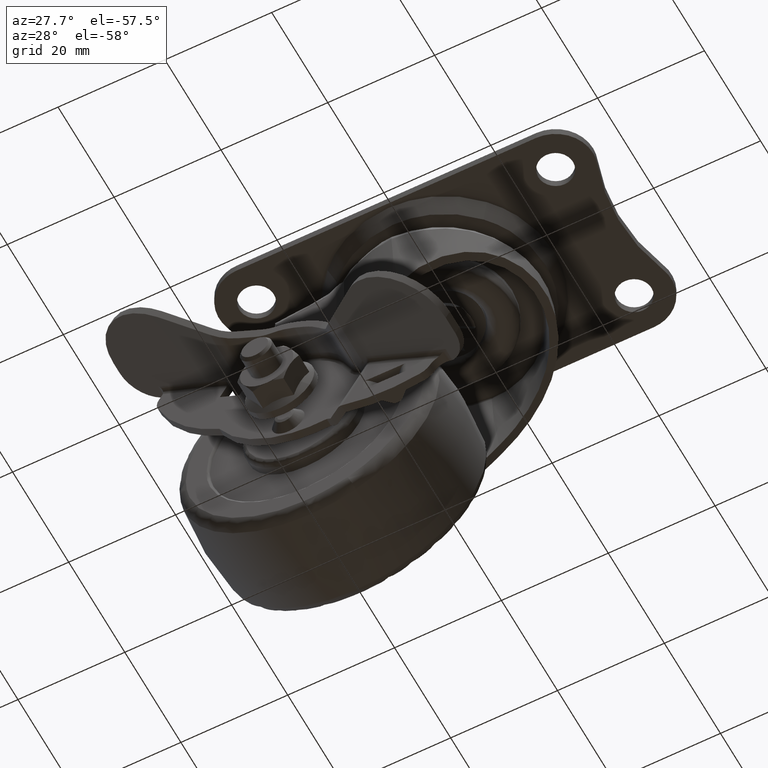
[diagram: clean part render]
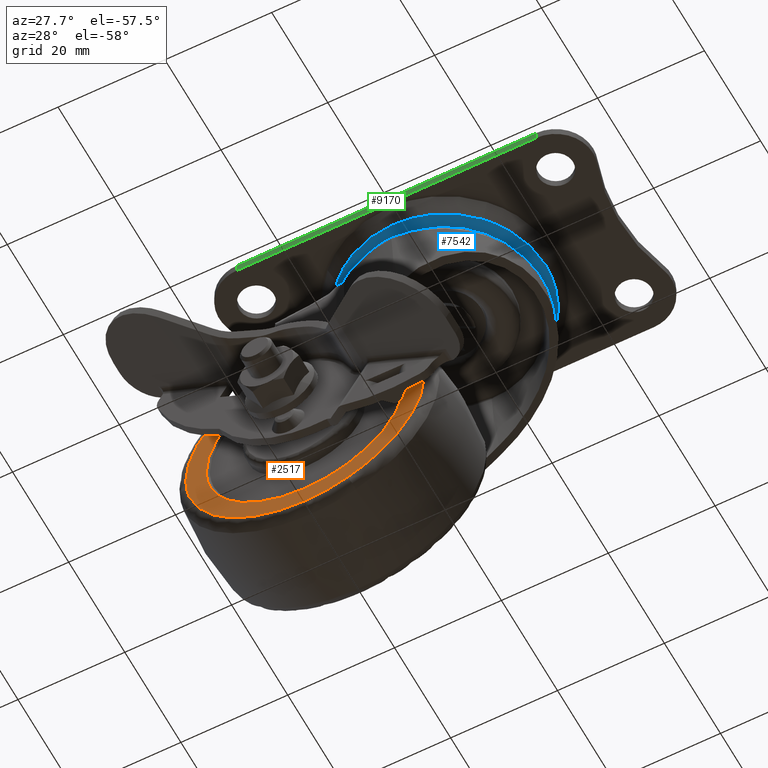
[diagram: same view with three faces highlighted in distinct colors, each labeled with its STEP entity id]
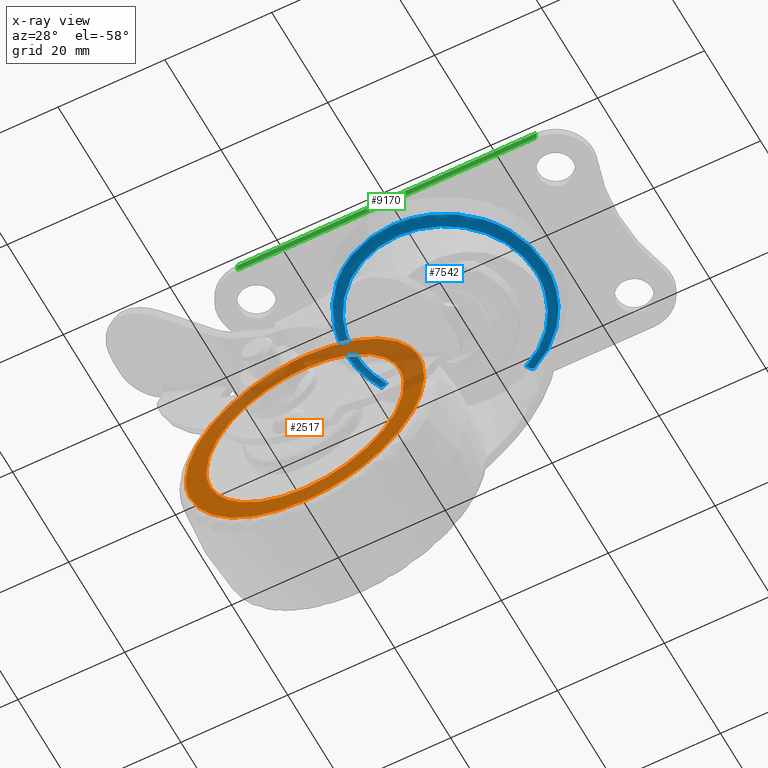
[diagram: x-ray of the same camera — body ghosted, the three highlighted faces saturated]
A machine part, auxiliary view with three faces highlighted in distinct colors.
The next image is the same camera in x-ray (body ghosted, the three faces saturated) — at least one of them is partly hidden behind the body in this view.
Their STEP definitions:

[orange] entity #2517 — the highlighted face is a freeform B-spline surface patch.
#1728=CARTESIAN_POINT('',(-13.052092699383110,-10.0,-59.366215137184469));
#1729=VERTEX_POINT('',#1728);
#1741=CARTESIAN_POINT('',(-21.0,-10.0,-60.828640000000000));
#1742=VERTEX_POINT('',#1741);
#1743=CARTESIAN_POINT('',(-13.052092699383110,-10.0,-59.366215137184469));
#1744=CARTESIAN_POINT('',(-13.803571049114931,-10.0,-59.652434333644592));
#1745=CARTESIAN_POINT('',(-16.386973819152690,-10.000000000000050,-60.479907994466672));
#1746=CARTESIAN_POINT('',(-19.095368897908251,-9.999999999999917,-60.829250064834717));
#1747=CARTESIAN_POINT('',(-21.0,-10.0,-60.828640000000000));
#1748=B_SPLINE_CURVE_WITH_KNOTS('',3,(#1743,#1744,#1745,#1746,#1747),.UNSPECIFIED.,.F.,.U.,(4,1,4),(4.315107E-009,2.412441695835542,8.126112834146838),.UNSPECIFIED.);
#1749=EDGE_CURVE('',#1729,#1742,#1748,.T.);
#1751=CARTESIAN_POINT('',(-43.328639999999943,-10.0,-38.499998391604883));
#1752=VERTEX_POINT('',#1751);
#1753=CARTESIAN_POINT('',(-21.0,-10.0,-60.828640000000000));
#1754=CARTESIAN_POINT('',(-22.187392421673820,-10.0,-60.828710637513311));
#1755=CARTESIAN_POINT('',(-24.607832307592510,-9.999999999999996,-60.635154605935860));
#1756=CARTESIAN_POINT('',(-27.766354959635059,-10.000000000000011,-59.854268826366997));
#1757=CARTESIAN_POINT('',(-30.951536948656319,-10.000000000000050,-58.580513623941400));
#1758=CARTESIAN_POINT('',(-34.121527523823879,-10.0,-56.733164621504983));
#1759=CARTESIAN_POINT('',(-36.921116899697310,-9.999999999999877,-54.288005977112903));
#1760=CARTESIAN_POINT('',(-39.033871977432590,-10.000000000000160,-51.761125921155980));
#1761=CARTESIAN_POINT('',(-40.747827735495321,-9.999999999999510,-49.109038866490117));
#1762=CARTESIAN_POINT('',(-42.151021488267659,-10.000000000000099,-45.969614234820838));
#1763=CARTESIAN_POINT('',(-43.108567771123120,-9.999999999999988,-42.290471948886058));
#1764=CARTESIAN_POINT('',(-43.328762316480663,-9.999999999999943,-39.824402912576367));
#1765=CARTESIAN_POINT('',(-43.328639999999943,-10.0,-38.499998391604883));
#1766=B_SPLINE_CURVE_WITH_KNOTS('',3,(#1753,#1754,#1755,#1756,#1757,#1758,#1759,#1760,#1761,#1762,#1763,#1764,#1765),.UNSPECIFIED.,.F.,.U.,(4,1,1,1,1,1,1,1,1,1,4),(0.000000077881346,3.562176384456304,7.261364165957456,9.727506248240552,13.837713750683340,18.221910342462561,20.825068395524848,23.702211848582440,27.675430028213540,31.100607968383208,35.073801621373633),.UNSPECIFIED.);
#1767=EDGE_CURVE('',#1742,#1752,#1766,.T.);
#1769=CARTESIAN_POINT('',(-21.0,-10.0,-16.171360000000000));
#1770=VERTEX_POINT('',#1769);
#1771=CARTESIAN_POINT('',(-43.328639999999943,-10.0,-38.499998391604883));
#1772=CARTESIAN_POINT('',(-43.329070249660582,-10.0,-36.673201108526342));
#1773=CARTESIAN_POINT('',(-42.973551013408247,-10.000000000000020,-33.796291984142329));
#1774=CARTESIAN_POINT('',(-41.835105574705757,-9.999999999999982,-30.315057244910861));
#1775=CARTESIAN_POINT('',(-40.572460487679663,-9.999999999999979,-27.624012184018529));
#1776=CARTESIAN_POINT('',(-39.095090978747429,-9.999999999999988,-25.306687899435001));
#1777=CARTESIAN_POINT('',(-37.357594556632570,-10.000000000000011,-23.241873193088150));
#1778=CARTESIAN_POINT('',(-35.546931831854273,-9.999999999999966,-21.496675289182772));
#1779=CARTESIAN_POINT('',(-33.076233744828521,-10.000000000000020,-19.604613207182279));
#1780=CARTESIAN_POINT('',(-30.046802384122881,-10.000000000000020,-17.973415802142519));
#1781=CARTESIAN_POINT('',(-27.099747840102850,-9.999999999999954,-16.969813645167509));
#1782=CARTESIAN_POINT('',(-24.196776761608760,-10.000000000000190,-16.336604285566381));
#1783=CARTESIAN_POINT('',(-22.278729597846439,-9.999999999999838,-16.171254947922609));
#1784=CARTESIAN_POINT('',(-21.0,-10.0,-16.171360000000000));
#1785=B_SPLINE_CURVE_WITH_KNOTS('',3,(#1771,#1772,#1773,#1774,#1775,#1776,#1777,#1778,#1779,#1780,#1781,#1782,#1783,#1784),.UNSPECIFIED.,.F.,.U.,(4,1,1,1,1,1,1,1,1,1,1,4),(0.000000078014935,5.480261445192422,8.631442570316963,10.960565447696951,14.385772951600581,16.851893008696081,19.043964394925720,21.921118453612550,26.168342348092558,29.319510064501781,31.237633877808189,35.073799808334869),.UNSPECIFIED.);
#1786=EDGE_CURVE('',#1752,#1770,#1785,.T.);
#1788=CARTESIAN_POINT('',(0.933138401593183,-10.0,-34.316030083079838));
#1789=VERTEX_POINT('',#1788);
#1790=CARTESIAN_POINT('',(-21.0,-10.0,-16.171360000000000));
#1791=CARTESIAN_POINT('',(-19.713965369251842,-10.000000000000030,-16.171270368970781));
#1792=CARTESIAN_POINT('',(-17.101723620952580,-9.999999999999940,-16.397618859290709));
#1793=CARTESIAN_POINT('',(-13.477261538831570,-10.000000000000011,-17.369076759396791));
#1794=CARTESIAN_POINT('',(-10.101567115959369,-10.000000000000030,-18.903274977339489));
#1795=CARTESIAN_POINT('',(-7.480487348890788,-9.999999999999996,-20.642612454888301));
#1796=CARTESIAN_POINT('',(-5.061961162064532,-9.999999999999998,-22.767434897818369));
#1797=CARTESIAN_POINT('',(-3.152840374310250,-10.000000000000030,-24.954455010477439));
#1798=CARTESIAN_POINT('',(-1.380277692412413,-9.999999999999915,-27.692338322668132));
#1799=CARTESIAN_POINT('',(0.035125368839619,-10.000000000000179,-30.723344897122988));
#1800=CARTESIAN_POINT('',(0.692272763498930,-9.999999999999741,-33.052750381060306));
#1801=CARTESIAN_POINT('',(0.933138401593183,-10.0,-34.316030083079838));
#1802=B_SPLINE_CURVE_WITH_KNOTS('',3,(#1790,#1791,#1792,#1793,#1794,#1795,#1796,#1797,#1798,#1799,#1800,#1801),.UNSPECIFIED.,.F.,.U.,(4,1,1,1,1,1,1,1,1,4),(0.000000057612343,3.858097982809202,7.836799815868869,11.212654826967199,14.950230485858491,17.240935948040370,20.857930158043899,23.630967662393509,27.006840094012091,30.864933707455229),.UNSPECIFIED.);
#1803=EDGE_CURVE('',#1770,#1789,#1802,.T.);
#1907=CARTESIAN_POINT('',(0.933138401593183,-10.0,-34.316030083079838));
#1908=CARTESIAN_POINT('',(1.176517038260563,-10.0,-35.591200725237712));
#1909=CARTESIAN_POINT('',(1.427473861083520,-10.000000000000011,-38.062573786372532));
#1910=CARTESIAN_POINT('',(1.187195497144796,-10.000000000000020,-41.758048152206783));
#1911=CARTESIAN_POINT('',(0.467312441343017,-9.999999999999870,-44.892076202312438));
#1912=CARTESIAN_POINT('',(-0.655029614629424,-10.000000000000110,-47.855721026167359));
#1913=CARTESIAN_POINT('',(-1.906271068268347,-9.999999999999908,-50.185592012498532));
#1914=CARTESIAN_POINT('',(-3.547572097633237,-10.000000000000050,-52.506758321541213));
#1915=CARTESIAN_POINT('',(-5.581112816795466,-9.999999999999810,-54.779517762441174));
#1916=CARTESIAN_POINT('',(-8.741151273558046,-10.000000000000311,-57.349675506112732));
#1917=CARTESIAN_POINT('',(-11.459682427831289,-9.999999999999609,-58.760023234036183));
#1918=CARTESIAN_POINT('',(-13.052092699383110,-10.0,-59.366215137184469));
#1919=B_SPLINE_CURVE_WITH_KNOTS('',3,(#1907,#1908,#1909,#1910,#1911,#1912,#1913,#1914,#1915,#1916,#1917,#1918),.UNSPECIFIED.,.F.,.U.,(4,1,1,1,1,1,1,1,1,4),(0.000000058611871,3.894543700651184,7.424016333234260,11.075194067130450,13.509312513810871,16.917007825621269,18.985984376128329,22.028640232683529,26.044918229128641,31.156531864569910),.UNSPECIFIED.);
#1920=EDGE_CURVE('',#1789,#1729,#1919,.T.);
#1955=CARTESIAN_POINT('',(-2.545035042426783,-10.0,-37.209934846147142));
#1956=VERTEX_POINT('',#1955);
#1957=CARTESIAN_POINT('',(-21.0,-10.0,-56.999999999999993));
#1958=VERTEX_POINT('',#1957);
#1959=CARTESIAN_POINT('',(-2.545035042426783,-10.0,-37.209934846147142));
#1960=CARTESIAN_POINT('',(-2.459433362879881,-10.000000000000011,-38.432049499316108));
#1961=CARTESIAN_POINT('',(-2.523060602402624,-9.999999999999989,-40.575683458638032));
#1962=CARTESIAN_POINT('',(-3.081179826211085,-10.000000000000020,-43.292828089746351));
#1963=CARTESIAN_POINT('',(-3.845025803709768,-9.999999999999954,-45.540887341905162));
#1964=CARTESIAN_POINT('',(-4.767844179709289,-10.000000000000091,-47.470450180354128));
#1965=CARTESIAN_POINT('',(-6.108849011651866,-9.999999999999872,-49.572557518019941));
#1966=CARTESIAN_POINT('',(-7.748182164075999,-10.000000000000099,-51.509243579329883));
#1967=CARTESIAN_POINT('',(-9.926740807512390,-9.999999999999908,-53.411371971265403));
#1968=CARTESIAN_POINT('',(-12.272842322058340,-10.000000000000140,-54.895212005967849));
#1969=CARTESIAN_POINT('',(-14.961413901055270,-9.999999999999924,-56.064222331259877));
#1970=CARTESIAN_POINT('',(-17.838478230306400,-9.999999999999970,-56.818290964265358));
#1971=CARTESIAN_POINT('',(-19.932973750352421,-10.000000000000140,-57.000092830367322));
#1972=CARTESIAN_POINT('',(-21.0,-10.0,-56.999999999999993));
#1973=B_SPLINE_CURVE_WITH_KNOTS('',3,(#1959,#1960,#1961,#1962,#1963,#1964,#1965,#1966,#1967,#1968,#1969,#1970,#1971,#1972),.UNSPECIFIED.,.F.,.U.,(4,1,1,1,1,1,1,1,1,1,1,4),(0.000000091453657,3.675298354397921,6.402133807372344,8.299077592571177,10.788797016664830,12.804288154121910,15.768238591899051,18.376516185082352,21.459027754279280,24.067317738757641,27.149829307956651,30.350896967654560),.UNSPECIFIED.);
#1974=EDGE_CURVE('',#1956,#1958,#1973,.T.);
#2024=CARTESIAN_POINT('',(-39.498539310146327,-10.0,-38.732471738061271));
#2025=VERTEX_POINT('',#2024);
#2036=CARTESIAN_POINT('',(-21.0,-10.0,-56.999999999999993));
#2037=CARTESIAN_POINT('',(-22.501464200667900,-10.0,-57.000395676711953));
#2038=CARTESIAN_POINT('',(-24.565713311440870,-10.000000000000011,-56.747253368085893));
#2039=CARTESIAN_POINT('',(-27.807131128911120,-9.999999999999981,-55.783115637033092));
#2040=CARTESIAN_POINT('',(-30.503597479459440,-10.000000000000080,-54.509455058677972));
#2041=CARTESIAN_POINT('',(-33.171003799368691,-9.999999999999906,-52.539441057874271));
#2042=CARTESIAN_POINT('',(-35.405876876252663,-10.0,-50.250494989809461));
#2043=CARTESIAN_POINT('',(-37.052723400189286,-10.000000000000069,-47.858695292310237));
#2044=CARTESIAN_POINT('',(-38.194114872076142,-9.999999999999977,-45.444407085941343));
#2045=CARTESIAN_POINT('',(-39.160833958604712,-9.999999999999851,-42.556962705541743));
#2046=CARTESIAN_POINT('',(-39.479160902507381,-10.000000000000250,-40.308890170662423));
#2047=CARTESIAN_POINT('',(-39.498539310146327,-10.0,-38.732471738061271));
#2048=B_SPLINE_CURVE_WITH_KNOTS('',3,(#2036,#2037,#2038,#2039,#2040,#2041,#2042,#2043,#2044,#2045,#2046,#2047),.UNSPECIFIED.,.F.,.U.,(4,1,1,1,1,1,1,1,1,4),(0.000000080718454,4.504254937661191,6.193357687688273,10.134616485597130,13.400207913579569,16.102707820717161,19.706152460815861,22.070903429198609,24.097838866067828,28.827298686266559),.UNSPECIFIED.);
#2049=EDGE_CURVE('',#1958,#2025,#2048,.T.);
#2083=CARTESIAN_POINT('',(-21.0,-10.0,-20.0));
#2084=VERTEX_POINT('',#2083);
#2085=CARTESIAN_POINT('',(-21.0,-10.0,-20.0));
#2086=CARTESIAN_POINT('',(-19.698324073232410,-9.999999999999959,-19.999753613732821));
#2087=CARTESIAN_POINT('',(-17.782113180133429,-10.000000000000050,-20.203158474370351));
#2088=CARTESIAN_POINT('',(-14.913993829125740,-9.999999999999965,-20.968914281914181));
#2089=CARTESIAN_POINT('',(-12.570196106278990,-10.000000000000121,-21.948185519688518));
#2090=CARTESIAN_POINT('',(-9.914528377477486,-9.999999999999917,-23.580561297933261));
#2091=CARTESIAN_POINT('',(-7.726389632846936,-10.000000000000011,-25.492962511022540));
#2092=CARTESIAN_POINT('',(-5.677395414026037,-9.999999999999993,-27.983835835997649));
#2093=CARTESIAN_POINT('',(-4.059102075021549,-10.000000000000020,-30.782733299130090));
#2094=CARTESIAN_POINT('',(-2.950413725761234,-9.999999999999961,-34.012459303395168));
#2095=CARTESIAN_POINT('',(-2.615575527729788,-10.0,-36.200003372821833));
#2096=CARTESIAN_POINT('',(-2.545035042426783,-10.0,-37.209934846147142));
#2097=B_SPLINE_CURVE_WITH_KNOTS('',3,(#2085,#2086,#2087,#2088,#2089,#2090,#2091,#2092,#2093,#2094,#2095,#2096),.UNSPECIFIED.,.F.,.U.,(4,1,1,1,1,1,1,1,1,4),(0.000000071698853,3.904954381469381,5.748976387081310,8.894658862314046,11.497978592228931,15.077508023137611,17.572329910801699,21.151909173309321,24.731483696922549,27.768658829926110),.UNSPECIFIED.);
#2098=EDGE_CURVE('',#2084,#1956,#2097,.T.);
#2100=CARTESIAN_POINT('',(-39.498539310146327,-10.0,-38.732471738061271));
#2101=CARTESIAN_POINT('',(-39.509591008788597,-10.000000000000011,-37.855304308285113));
#2102=CARTESIAN_POINT('',(-39.397675200289243,-9.999999999999998,-35.946707516632557));
#2103=CARTESIAN_POINT('',(-38.733800018468934,-9.999999999999885,-32.879238312685452));
#2104=CARTESIAN_POINT('',(-37.522471353737579,-10.000000000000361,-29.979151777006940));
#2105=CARTESIAN_POINT('',(-36.005597814738309,-9.999999999999359,-27.590480774696999));
#2106=CARTESIAN_POINT('',(-34.389588255429537,-10.000000000000711,-25.654721605749501));
#2107=CARTESIAN_POINT('',(-32.472938820076202,-9.999999999999584,-23.896828039844550));
#2108=CARTESIAN_POINT('',(-30.407646473305711,-10.000000000000160,-22.512079701234089));
#2109=CARTESIAN_POINT('',(-27.812129487014030,-9.999999999999984,-21.213347390236471));
#2110=CARTESIAN_POINT('',(-24.775929430996449,-9.999999999999929,-20.253702276442379));
#2111=CARTESIAN_POINT('',(-22.220505254379461,-10.000000000000091,-19.999880955688329));
#2112=CARTESIAN_POINT('',(-21.0,-10.0,-20.0));
#2113=B_SPLINE_CURVE_WITH_KNOTS('',3,(#2100,#2101,#2102,#2103,#2104,#2105,#2106,#2107,#2108,#2109,#2110,#2111,#2112),.UNSPECIFIED.,.F.,.U.,(4,1,1,1,1,1,1,1,1,1,4),(0.000000084644032,2.631717989837487,5.721140078878609,9.382680711488913,12.014421006295160,14.188479641938549,16.934548650093362,19.795141067509331,21.625921570323989,25.630741006942479,29.292256589501878),.UNSPECIFIED.);
#2114=EDGE_CURVE('',#2025,#2084,#2113,.T.);
#2499=CARTESIAN_POINT('',(-45.559267615615703,-10.0,-63.059271049445528));
#2500=CARTESIAN_POINT('',(-45.559267615615703,-10.0,-13.940727752752890));
#2501=CARTESIAN_POINT('',(3.559200067759754,-10.0,-63.059271049445520));
#2502=CARTESIAN_POINT('',(3.559200067759754,-10.0,-13.940727752752890));
#2503=B_SPLINE_SURFACE_WITH_KNOTS('',1,1,((#2499,#2501),(#2500,#2502)),.UNSPECIFIED.,.F.,.F.,.U.,(2,2),(2,2),(0.0,49.118543296692643),(0.0,49.118467683375457),.UNSPECIFIED.);
#2504=ORIENTED_EDGE('',*,*,#1786,.F.);
#2505=ORIENTED_EDGE('',*,*,#1767,.F.);
#2506=ORIENTED_EDGE('',*,*,#1749,.F.);
#2507=ORIENTED_EDGE('',*,*,#1920,.F.);
#2508=ORIENTED_EDGE('',*,*,#1803,.F.);
#2509=EDGE_LOOP('',(#2504,#2505,#2506,#2507,#2508));
#2510=FACE_OUTER_BOUND('',#2509,.T.);
#2511=ORIENTED_EDGE('',*,*,#2049,.T.);
#2512=ORIENTED_EDGE('',*,*,#2114,.T.);
#2513=ORIENTED_EDGE('',*,*,#2098,.T.);
#2514=ORIENTED_EDGE('',*,*,#1974,.T.);
#2515=EDGE_LOOP('',(#2511,#2512,#2513,#2514));
#2516=FACE_BOUND('',#2515,.T.);
#2517=ADVANCED_FACE('',(#2510,#2516),#2503,.F.);

[blue] entity #7542 — the highlighted face is a freeform B-spline surface patch.
#3447=CARTESIAN_POINT('',(-13.446668179705361,-13.086058546007839,-3.243997071950652));
#3448=VERTEX_POINT('',#3447);
#3454=CARTESIAN_POINT('',(-0.000001753686267,-18.763203172549570,-3.243997254316575));
#3455=VERTEX_POINT('',#3454);
#3456=CARTESIAN_POINT('',(-0.000001753686267,-18.763203172549570,-3.243997254316575));
#3457=CARTESIAN_POINT('',(-1.288364051509951,-18.763411241258918,-3.243997236843600));
#3458=CARTESIAN_POINT('',(-3.240293101756210,-18.561301306233851,-3.243997210371199));
#3459=CARTESIAN_POINT('',(-6.112442103431523,-17.800195733370568,-3.243997171418657));
#3460=CARTESIAN_POINT('',(-8.355555626021957,-16.869624756788891,-3.243997140997160));
#3461=CARTESIAN_POINT('',(-10.981840301737630,-15.317714932310031,-3.243997105379060));
#3462=CARTESIAN_POINT('',(-12.548280324266820,-14.009517620238260,-3.243997084134728));
#3463=CARTESIAN_POINT('',(-13.446668179705361,-13.086058546007839,-3.243997071950652));
#3464=B_SPLINE_CURVE_WITH_KNOTS('',3,(#3456,#3457,#3458,#3459,#3460,#3461,#3462,#3463),.UNSPECIFIED.,.F.,.U.,(4,1,1,1,1,4),(0.000000021748560,3.865023599977977,5.856102761578656,8.901263083076529,11.126581826376629,14.991605469402741),.UNSPECIFIED.);
#3465=EDGE_CURVE('',#3455,#3448,#3464,.T.);
#3467=CARTESIAN_POINT('',(13.833684071338419,-12.676235966075639,-3.243997436055670));
#3468=VERTEX_POINT('',#3467);
#3469=CARTESIAN_POINT('',(13.833684071338419,-12.676235966075639,-3.243997436055670));
#3470=CARTESIAN_POINT('',(13.094839923604470,-13.482692059862590,-3.243997426349153));
#3471=CARTESIAN_POINT('',(11.685433166951359,-14.773502992839600,-3.243997407833186));
#3472=CARTESIAN_POINT('',(9.492024406734348,-16.240145640083892,-3.243997379017406));
#3473=CARTESIAN_POINT('',(7.208622939391769,-17.389564503118741,-3.243997349019403));
#3474=CARTESIAN_POINT('',(4.091204729390602,-18.447275146579841,-3.243997308064506));
#3475=CARTESIAN_POINT('',(1.539368802225781,-18.763629082507919,-3.243997274539977));
#3476=CARTESIAN_POINT('',(-0.000001753686267,-18.763203172549570,-3.243997254316575));
#3477=B_SPLINE_CURVE_WITH_KNOTS('',3,(#3469,#3470,#3471,#3472,#3473,#3474,#3475,#3476),.UNSPECIFIED.,.F.,.U.,(4,1,1,1,1,4),(0.000000024532918,3.281198228734509,5.711722164604842,7.899155716953234,10.937324234757220,15.555313215745160),.UNSPECIFIED.);
#3478=EDGE_CURVE('',#3468,#3455,#3477,.T.);
#3592=CARTESIAN_POINT('',(18.763203172549652,0.0,-3.243997254316575));
#3593=VERTEX_POINT('',#3592);
#3594=CARTESIAN_POINT('',(18.763203172549652,0.0,-3.243997254316575));
#3595=CARTESIAN_POINT('',(18.763376595798459,-1.232327751025715,-3.243997271984456));
#3596=CARTESIAN_POINT('',(18.562477704105550,-3.261951469003876,-3.243997301083138));
#3597=CARTESIAN_POINT('',(17.803984552538740,-6.104269707350375,-3.243997341833453));
#3598=CARTESIAN_POINT('',(16.904814878440941,-8.249154062143008,-3.243997372584616));
#3599=CARTESIAN_POINT('',(15.609615729058300,-10.518305569559161,-3.243997405117462));
#3600=CARTESIAN_POINT('',(14.568360981771130,-11.874634913956420,-3.243997424563097));
#3601=CARTESIAN_POINT('',(13.833684071338419,-12.676235966075639,-3.243997436055670));
#3602=B_SPLINE_CURVE_WITH_KNOTS('',3,(#3594,#3595,#3596,#3597,#3598,#3599,#3600,#3601),.UNSPECIFIED.,.F.,.U.,(4,1,1,1,1,4),(0.000000018085068,3.696944107060590,6.089098594676400,8.807422298705355,10.655896799908740,13.917905403781710),.UNSPECIFIED.);
#3603=EDGE_CURVE('',#3593,#3468,#3602,.T.);
#3605=CARTESIAN_POINT('',(7.656007003477729,17.130188266726250,-3.243997254495328));
#3606=VERTEX_POINT('',#3605);
#3607=CARTESIAN_POINT('',(7.656007003477729,17.130188266726250,-3.243997254495328));
#3608=CARTESIAN_POINT('',(8.528531847891804,16.740289741678581,-3.243997254481295));
#3609=CARTESIAN_POINT('',(10.213793949616999,15.826757187052340,-3.243997254454156));
#3610=CARTESIAN_POINT('',(12.279220162023540,14.258247178442771,-3.243997254420921));
#3611=CARTESIAN_POINT('',(14.040535763021740,12.516418785473720,-3.243997254392582));
#3612=CARTESIAN_POINT('',(15.369447946578649,10.837695862460270,-3.243997254371168));
#3613=CARTESIAN_POINT('',(16.817671674395019,8.490541532306049,-3.243997254347920));
#3614=CARTESIAN_POINT('',(17.940070390642759,5.835716845105202,-3.243997254329714));
#3615=CARTESIAN_POINT('',(18.629553250414350,2.754573201219147,-3.243997254318867));
#3616=CARTESIAN_POINT('',(18.763237466600319,0.899453866337064,-3.243997254316523));
#3617=CARTESIAN_POINT('',(18.763203172549652,0.0,-3.243997254316575));
#3618=B_SPLINE_CURVE_WITH_KNOTS('',3,(#3607,#3608,#3609,#3610,#3611,#3612,#3613,#3614,#3615,#3616,#3617),.UNSPECIFIED.,.F.,.U.,(4,1,1,1,1,1,1,1,4),(0.000000038395722,2.867035763578816,5.734073138542646,7.757864862345475,10.287635670231451,12.142715654121110,16.021671523914659,18.888726296421929,21.587095960706680),.UNSPECIFIED.);
#3619=EDGE_CURVE('',#3606,#3593,#3618,.T.);
#3621=CARTESIAN_POINT('',(-16.664284633949212,8.623190298832249,-3.243997254477175));
#3622=VERTEX_POINT('',#3621);
#3638=CARTESIAN_POINT('',(-18.763203172549652,0.0,-3.243997254316575));
#3639=VERTEX_POINT('',#3638);
#3640=CARTESIAN_POINT('',(-18.763203172549652,0.0,-3.243997254316575));
#3641=CARTESIAN_POINT('',(-18.763303526115980,1.073323318645818,-3.243997254316583));
#3642=CARTESIAN_POINT('',(-18.614609686821922,2.799916898484510,-3.243997254327920));
#3643=CARTESIAN_POINT('',(-17.950795377010412,5.716021986022797,-3.243997254378756));
#3644=CARTESIAN_POINT('',(-17.243506410843281,7.504218021687992,-3.243997254432852));
#3645=CARTESIAN_POINT('',(-16.664284633949212,8.623190298832249,-3.243997254477175));
#3646=B_SPLINE_CURVE_WITH_KNOTS('',3,(#3640,#3641,#3642,#3643,#3644,#3645),.UNSPECIFIED.,.F.,.U.,(4,1,1,4),(8.503282E-009,3.219955667064719,5.179910622901696,8.959864652143855),.UNSPECIFIED.);
#3647=EDGE_CURVE('',#3639,#3622,#3646,.T.);
#3649=CARTESIAN_POINT('',(-13.446668179705361,-13.086058546007839,-3.243997071950652));
#3650=CARTESIAN_POINT('',(-14.393725432606630,-12.113247748046399,-3.243997085507630));
#3651=CARTESIAN_POINT('',(-15.934910892676790,-10.140149489936441,-3.243997113004540));
#3652=CARTESIAN_POINT('',(-17.579774989726399,-6.855897125490892,-3.243997158773509));
#3653=CARTESIAN_POINT('',(-18.543994043093250,-3.507233516703289,-3.243997205440148));
#3654=CARTESIAN_POINT('',(-18.763320284628730,-1.169092647780289,-3.243997238024218));
#3655=CARTESIAN_POINT('',(-18.763203172549652,0.0,-3.243997254316575));
#3656=B_SPLINE_CURVE_WITH_KNOTS('',3,(#3649,#3650,#3651,#3652,#3653,#3654,#3655),.UNSPECIFIED.,.F.,.U.,(4,1,1,1,4),(0.000000020730353,4.072955709092906,7.467071141828488,10.974345392101389,14.481610096515411),.UNSPECIFIED.);
#3657=EDGE_CURVE('',#3448,#3639,#3656,.T.);
#7416=CARTESIAN_POINT('',(7.674697010486399,17.172004302330318,-3.152944437897303));
#7417=CARTESIAN_POINT('',(8.166151921782566,16.952357983117505,-3.152944437897303));
#7418=CARTESIAN_POINT('',(8.644240346794636,16.704963776939707,-3.152944437897303));
#7419=CARTESIAN_POINT('',(25.349204123734342,8.060723430145066,-3.152944437897304));
#7420=CARTESIAN_POINT('',(16.704963776939707,-8.644240346794636,-3.152944437897303));
#7421=CARTESIAN_POINT('',(8.060723430145066,-25.349204123734342,-3.152944437897304));
#7422=CARTESIAN_POINT('',(-8.644240346794636,-16.704963776939707,-3.152944437897303));
#7423=CARTESIAN_POINT('',(-25.349204123734324,-8.060723430145078,-3.152944437897304));
#7424=CARTESIAN_POINT('',(-16.704963776939707,8.644240346794643,-3.152944437897303));
#7425=CARTESIAN_POINT('',(7.441380874057663,16.649963407024217,-4.365682554120697));
#7426=CARTESIAN_POINT('',(7.917895213631471,16.436994488953047,-4.365682554120697));
#7427=CARTESIAN_POINT('',(8.381449417417258,16.197121239013835,-4.365682554120697));
#7428=CARTESIAN_POINT('',(24.578570656431079,7.815671821596568,-4.365682554120697));
#7429=CARTESIAN_POINT('',(16.197121239013835,-8.381449417417256,-4.365682554120697));
#7430=CARTESIAN_POINT('',(7.815671821596571,-24.578570656431079,-4.365682554120697));
#7431=CARTESIAN_POINT('',(-8.381449417417256,-16.197121239013835,-4.365682554120697));
#7432=CARTESIAN_POINT('',(-24.578570656431079,-7.815671821596583,-4.365682554120697));
#7433=CARTESIAN_POINT('',(-16.197121239013821,8.381449417417263,-4.365682554120697));
#7434=CARTESIAN_POINT('',(6.895007195619874,15.427461574835400,-4.297404239580902));
#7435=CARTESIAN_POINT('',(7.336534091740956,15.230129621613726,-4.297404239580901));
#7436=CARTESIAN_POINT('',(7.766052433129118,15.007868751976799,-4.297404239580901));
#7437=CARTESIAN_POINT('',(22.773921185105927,7.241816318847685,-4.297404239580902));
#7438=CARTESIAN_POINT('',(15.007868751976799,-7.766052433129115,-4.297404239580901));
#7439=CARTESIAN_POINT('',(7.241816318847686,-22.773921185105927,-4.297404239580902));
#7440=CARTESIAN_POINT('',(-7.766052433129115,-15.007868751976799,-4.297404239580901));
#7441=CARTESIAN_POINT('',(-22.773921185105909,-7.241816318847697,-4.297404239580902));
#7442=CARTESIAN_POINT('',(-15.007868751976799,7.766052433129121,-4.297404239580901));
#7450=(BOUNDED_SURFACE()B_SPLINE_SURFACE(2,2,((#7416,#7425,#7434),(#7417,#7426,#7435),(#7418,#7427,#7436),(#7419,#7428,#7437),(#7420,#7429,#7438),(#7421,#7430,#7439),(#7422,#7431,#7440),(#7423,#7432,#7441),(#7424,#7433,#7442)),.UNSPECIFIED.,.F.,.F.,.U.)B_SPLINE_SURFACE_WITH_KNOTS((3,2,2,2,3),(3,3),(0.0,1.246550070674881,32.410331557644902,63.574113044614933,94.737894531584956),(0.0,2.433449396145581),.UNSPECIFIED.)GEOMETRIC_REPRESENTATION_ITEM()RATIONAL_B_SPLINE_SURFACE(((0.903444718542608,0.750584197896223,0.903842508489081),(0.913406545380157,0.758860509277515,0.913808721554678),(0.924234617131715,0.767856499163334,0.924641560945023),(0.653532565181188,0.542956537536556,0.653820317911140),(0.924234617131715,0.767856499163334,0.924641560945023),(0.653532565181188,0.542956537536556,0.653820317911140),(0.924234617131715,0.767856499163334,0.924641560945023),(0.653532565181188,0.542956537536556,0.653820317911140),(0.924234617131715,0.767856499163334,0.924641560945023)))REPRESENTATION_ITEM('')SURFACE());
#7451=ORIENTED_EDGE('',*,*,#3619,.T.);
#7452=ORIENTED_EDGE('',*,*,#3603,.T.);
#7453=ORIENTED_EDGE('',*,*,#3478,.T.);
#7454=ORIENTED_EDGE('',*,*,#3465,.T.);
#7455=ORIENTED_EDGE('',*,*,#3657,.T.);
#7456=ORIENTED_EDGE('',*,*,#3647,.T.);
#7457=CARTESIAN_POINT('',(-15.098324101914081,7.812859944776915,-4.299999201334089));
#7458=VERTEX_POINT('',#7457);
#7459=CARTESIAN_POINT('',(-16.664284633949212,8.623190298832249,-3.243997254477175));
#7460=CARTESIAN_POINT('',(-16.542027885098658,8.559926664424493,-3.501942046313316));
#7461=CARTESIAN_POINT('',(-16.261426727049290,8.414725280920267,-3.867912255930342));
#7462=CARTESIAN_POINT('',(-15.697255644165240,8.122786279913127,-4.219682274280659));
#7463=CARTESIAN_POINT('',(-15.318014023347271,7.926541872363065,-4.300226187778706));
#7464=CARTESIAN_POINT('',(-15.098324101914081,7.812859944776915,-4.299999201334089));
#7465=B_SPLINE_CURVE_WITH_KNOTS('',3,(#7459,#7460,#7461,#7462,#7463,#7464),.UNSPECIFIED.,.F.,.U.,(4,1,1,4),(0.000000098585677,0.876910192600521,1.416507622670016,2.158504412008096),.UNSPECIFIED.);
#7466=EDGE_CURVE('',#3622,#7458,#7465,.T.);
#7467=ORIENTED_EDGE('',*,*,#7466,.T.);
#7468=CARTESIAN_POINT('',(-17.000005033948849,0.0,-4.299999201334090));
#7469=VERTEX_POINT('',#7468);
#7470=CARTESIAN_POINT('',(-17.000005033948849,0.0,-4.299999201334090));
#7471=CARTESIAN_POINT('',(-17.000164956039530,1.141590355313513,-4.299999201334102));
#7472=CARTESIAN_POINT('',(-16.803339580752962,3.086438087569958,-4.299999201334053));
#7473=CARTESIAN_POINT('',(-16.073589931409991,5.699206884445320,-4.299999201334146));
#7474=CARTESIAN_POINT('',(-15.448115133940981,7.136955133006354,-4.299999201334035));
#7475=CARTESIAN_POINT('',(-15.098324101914081,7.812859944776915,-4.299999201334089));
#7476=B_SPLINE_CURVE_WITH_KNOTS('',3,(#7470,#7471,#7472,#7473,#7474,#7475),.UNSPECIFIED.,.F.,.U.,(4,1,1,4),(8.793506E-009,3.424746681451146,5.834737156670521,8.117896650929223),.UNSPECIFIED.);
#7477=EDGE_CURVE('',#7469,#7458,#7476,.T.);
#7478=ORIENTED_EDGE('',*,*,#7477,.F.);
#7479=CARTESIAN_POINT('',(-0.000000907277029,-17.000005033948831,-4.299999201334090));
#7480=VERTEX_POINT('',#7479);
#7481=CARTESIAN_POINT('',(-0.000000907277029,-17.000005033948831,-4.299999201334090));
#7482=CARTESIAN_POINT('',(-0.660626285726565,-17.000010339816850,-4.299999201334084));
#7483=CARTESIAN_POINT('',(-2.225296319245988,-16.908738899178658,-4.299999201334104));
#7484=CARTESIAN_POINT('',(-4.346346277116583,-16.486824931172571,-4.299999201334069));
#7485=CARTESIAN_POINT('',(-6.587544096571205,-15.723491470983291,-4.299999201334139));
#7486=CARTESIAN_POINT('',(-8.496354477607827,-14.784585115648650,-4.299999201333995));
#7487=CARTESIAN_POINT('',(-10.345947969676260,-13.540462400369741,-4.299999201334148));
#7488=CARTESIAN_POINT('',(-12.060533209394301,-12.061501381778490,-4.299999201334045));
#7489=CARTESIAN_POINT('',(-13.804403277141640,-10.064883980855530,-4.299999201334141));
#7490=CARTESIAN_POINT('',(-15.182621635759229,-7.797103362051515,-4.299999201333990));
#7491=CARTESIAN_POINT('',(-16.249106233481491,-5.222337576064424,-4.299999201334139));
#7492=CARTESIAN_POINT('',(-16.861559729726601,-2.712085593777775,-4.299999201334070));
#7493=CARTESIAN_POINT('',(-17.000029754640430,-0.834478776913061,-4.299999201334096));
#7494=CARTESIAN_POINT('',(-17.000005033948849,0.0,-4.299999201334090));
#7495=B_SPLINE_CURVE_WITH_KNOTS('',3,(#7481,#7482,#7483,#7484,#7485,#7486,#7487,#7488,#7489,#7490,#7491,#7492,#7493,#7494),.UNSPECIFIED.,.F.,.U.,(4,1,1,1,1,1,1,1,1,1,1,4),(0.000000082418413,1.981884104949131,4.693985999579137,6.467274608194515,9.075066238960318,11.056967843700111,13.143191544942949,15.855241513588620,18.984576308588320,21.070803993987891,24.200138788710859,26.703586841579789),.UNSPECIFIED.);
#7496=EDGE_CURVE('',#7480,#7469,#7495,.T.);
#7497=ORIENTED_EDGE('',*,*,#7496,.F.);
#7498=CARTESIAN_POINT('',(17.000005033948849,0.0,-4.299999201334090));
#7499=VERTEX_POINT('',#7498);
#7500=CARTESIAN_POINT('',(17.000005033948849,0.0,-4.299999201334090));
#7501=CARTESIAN_POINT('',(17.000325148710999,-1.390836821562543,-4.299999201334083));
#7502=CARTESIAN_POINT('',(16.725350197682641,-3.615947439547790,-4.299999201334101));
#7503=CARTESIAN_POINT('',(15.653529502534210,-6.860286404710427,-4.299999201334082));
#7504=CARTESIAN_POINT('',(14.320085209718499,-9.318684828144306,-4.299999201334074));
#7505=CARTESIAN_POINT('',(12.483233312677500,-11.642656875261711,-4.299999201334059));
#7506=CARTESIAN_POINT('',(10.508371672664330,-13.466035513639831,-4.299999201334173));
#7507=CARTESIAN_POINT('',(8.227770093509527,-14.949655753100529,-4.299999201333969));
#7508=CARTESIAN_POINT('',(6.006280762842344,-15.958898516380611,-4.299999201334126));
#7509=CARTESIAN_POINT('',(3.303066483124586,-16.769950309523200,-4.299999201334066));
#7510=CARTESIAN_POINT('',(1.286520487667777,-17.000249971533432,-4.299999201334107));
#7511=CARTESIAN_POINT('',(-0.000000907277029,-17.000005033948831,-4.299999201334090));
#7512=B_SPLINE_CURVE_WITH_KNOTS('',3,(#7500,#7501,#7502,#7503,#7504,#7505,#7506,#7507,#7508,#7509,#7510,#7511),.UNSPECIFIED.,.F.,.U.,(4,1,1,1,1,1,1,1,1,4),(0.000000082353150,4.172416917594987,6.675897707671805,10.222496112963681,12.517351842417041,15.542286157368540,18.254391122555798,20.653560588715170,22.844093433169981,26.703587864294061),.UNSPECIFIED.);
#7513=EDGE_CURVE('',#7499,#7480,#7512,.T.);
#7514=ORIENTED_EDGE('',*,*,#7513,.F.);
#7515=CARTESIAN_POINT('',(6.936563891507976,15.520446275716161,-4.299999201334090));
#7516=VERTEX_POINT('',#7515);
#7517=CARTESIAN_POINT('',(6.936563891507976,15.520446275716161,-4.299999201334090));
#7518=CARTESIAN_POINT('',(7.820113581204061,15.125652662045191,-4.299999201334106));
#7519=CARTESIAN_POINT('',(9.206395824569176,14.357884630343600,-4.299999201334074));
#7520=CARTESIAN_POINT('',(11.244435238254050,12.824618132213210,-4.299999201334093));
#7521=CARTESIAN_POINT('',(12.908965956060159,11.163666807916540,-4.299999201334106));
#7522=CARTESIAN_POINT('',(14.601703105087800,8.859903930662311,-4.299999201334083));
#7523=CARTESIAN_POINT('',(15.962423338714050,6.164071888563548,-4.299999201334071));
#7524=CARTESIAN_POINT('',(16.821278618824429,3.055988313835559,-4.299999201334097));
#7525=CARTESIAN_POINT('',(17.000063423978830,0.967737859991130,-4.299999201334084));
#7526=CARTESIAN_POINT('',(17.000005033948849,0.0,-4.299999201334090));
#7527=B_SPLINE_CURVE_WITH_KNOTS('',3,(#7517,#7518,#7519,#7520,#7521,#7522,#7523,#7524,#7525,#7526),.UNSPECIFIED.,.F.,.U.,(4,1,1,1,1,1,1,4),(0.000000046736808,2.903213754485943,4.736831703925944,7.640052724021869,9.932042273392685,13.293690152640339,16.655319909204760,19.558533616953660),.UNSPECIFIED.);
#7528=EDGE_CURVE('',#7516,#7499,#7527,.T.);
#7529=ORIENTED_EDGE('',*,*,#7528,.F.);
#7530=CARTESIAN_POINT('',(7.656007003477729,17.130188266726250,-3.243997254495328));
#7531=CARTESIAN_POINT('',(7.610602555985389,17.028596571036470,-3.452251126957647));
#7532=CARTESIAN_POINT('',(7.523864075764465,16.834520664942829,-3.720838225797470));
#7533=CARTESIAN_POINT('',(7.351629408159221,16.449148462284420,-4.041226550338822));
#7534=CARTESIAN_POINT('',(7.170498848141413,16.043871848374231,-4.244813649651761));
#7535=CARTESIAN_POINT('',(7.014547362936436,15.694932995350280,-4.300071133522517));
#7536=CARTESIAN_POINT('',(6.936563891507976,15.520446275716161,-4.299999201334090));
#7537=B_SPLINE_CURVE_WITH_KNOTS('',3,(#7530,#7531,#7532,#7533,#7534,#7535,#7536),.UNSPECIFIED.,.F.,.U.,(4,1,1,1,4),(0.000000098586610,0.708262801452191,1.011809851437674,1.585151384965588,2.158504411494260),.UNSPECIFIED.);
#7538=EDGE_CURVE('',#3606,#7516,#7537,.T.);
#7539=ORIENTED_EDGE('',*,*,#7538,.F.);
#7540=EDGE_LOOP('',(#7451,#7452,#7453,#7454,#7455,#7456,#7467,#7478,#7497,#7514,#7529,#7539));
#7541=FACE_OUTER_BOUND('',#7540,.T.);
#7542=ADVANCED_FACE('',(#7541),#7450,.T.);

[green] entity #9170 — the highlighted face is a freeform B-spline surface patch.
#8760=CARTESIAN_POINT('',(-28.000006108652400,-20.999999999997350,0.0));
#8761=VERTEX_POINT('',#8760);
#8778=CARTESIAN_POINT('',(-28.000006108652400,-20.999999999997350,1.499999999999946));
#8779=VERTEX_POINT('',#8778);
#8780=CARTESIAN_POINT('',(-28.000006108652400,-20.999999999997350,1.499999999999946));
#8781=CARTESIAN_POINT('',(-28.000006108652400,-20.999999999997350,0.0));
#8782=QUASI_UNIFORM_CURVE('',1,(#8780,#8781),.UNSPECIFIED.,.F.,.U.);
#8783=EDGE_CURVE('',#8779,#8761,#8782,.T.);
#9047=CARTESIAN_POINT('',(28.0,-21.0,0.0));
#9048=VERTEX_POINT('',#9047);
#9066=CARTESIAN_POINT('',(28.0,-21.0,1.499999999999946));
#9067=VERTEX_POINT('',#9066);
#9084=CARTESIAN_POINT('',(28.0,-21.0,1.499999999999946));
#9085=CARTESIAN_POINT('',(28.0,-21.0,0.0));
#9086=QUASI_UNIFORM_CURVE('',1,(#9084,#9085),.UNSPECIFIED.,.F.,.U.);
#9087=EDGE_CURVE('',#9067,#9048,#9086,.T.);
#9098=CARTESIAN_POINT('',(-28.000006108652400,-20.999999999997350,0.0));
#9099=CARTESIAN_POINT('',(28.0,-21.0,0.0));
#9100=QUASI_UNIFORM_CURVE('',1,(#9098,#9099),.UNSPECIFIED.,.F.,.U.);
#9101=EDGE_CURVE('',#8761,#9048,#9100,.T.);
#9155=CARTESIAN_POINT('',(-30.797206305240710,-21.0,-0.074924997092706));
#9156=CARTESIAN_POINT('',(-30.797206305240710,-21.0,1.574925037325788));
#9157=CARTESIAN_POINT('',(30.797201698625528,-21.0,-0.074924997092706));
#9158=CARTESIAN_POINT('',(30.797201698625528,-21.0,1.574925037325788));
#9159=B_SPLINE_SURFACE_WITH_KNOTS('',1,1,((#9155,#9157),(#9156,#9158)),.UNSPECIFIED.,.F.,.F.,.U.,(2,2),(2,2),(0.041708334948495,0.958291687403247),(0.0,61.594408003866242),.UNSPECIFIED.);
#9160=ORIENTED_EDGE('',*,*,#9087,.F.);
#9161=CARTESIAN_POINT('',(-28.000006108652400,-20.999999999997350,1.499999999999946));
#9162=CARTESIAN_POINT('',(28.0,-21.0,1.499999999999946));
#9163=QUASI_UNIFORM_CURVE('',1,(#9161,#9162),.UNSPECIFIED.,.F.,.U.);
#9164=EDGE_CURVE('',#8779,#9067,#9163,.T.);
#9165=ORIENTED_EDGE('',*,*,#9164,.F.);
#9166=ORIENTED_EDGE('',*,*,#8783,.T.);
#9167=ORIENTED_EDGE('',*,*,#9101,.T.);
#9168=EDGE_LOOP('',(#9160,#9165,#9166,#9167));
#9169=FACE_OUTER_BOUND('',#9168,.T.);
#9170=ADVANCED_FACE('',(#9169),#9159,.F.);